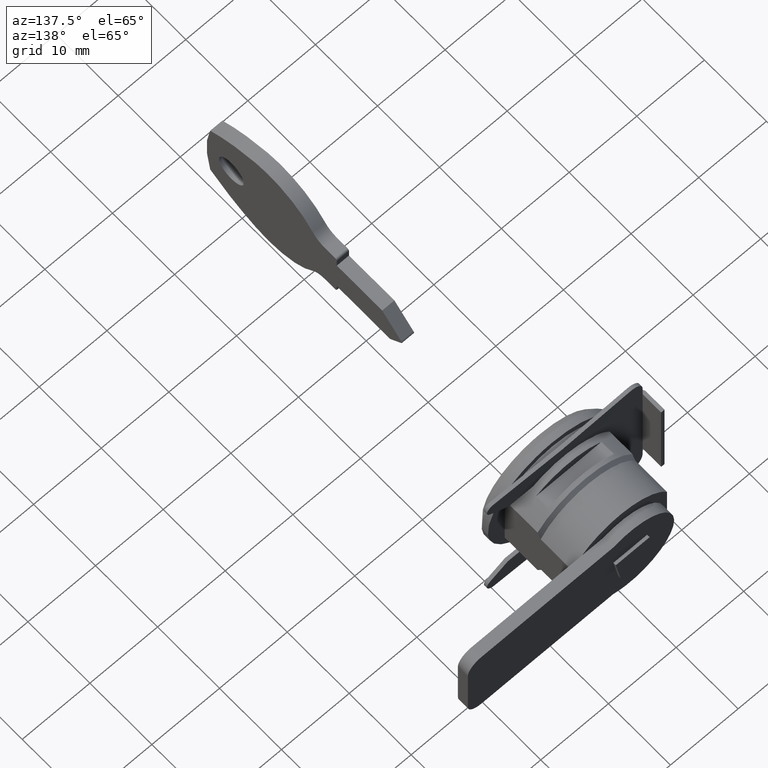
[diagram: clean part render]
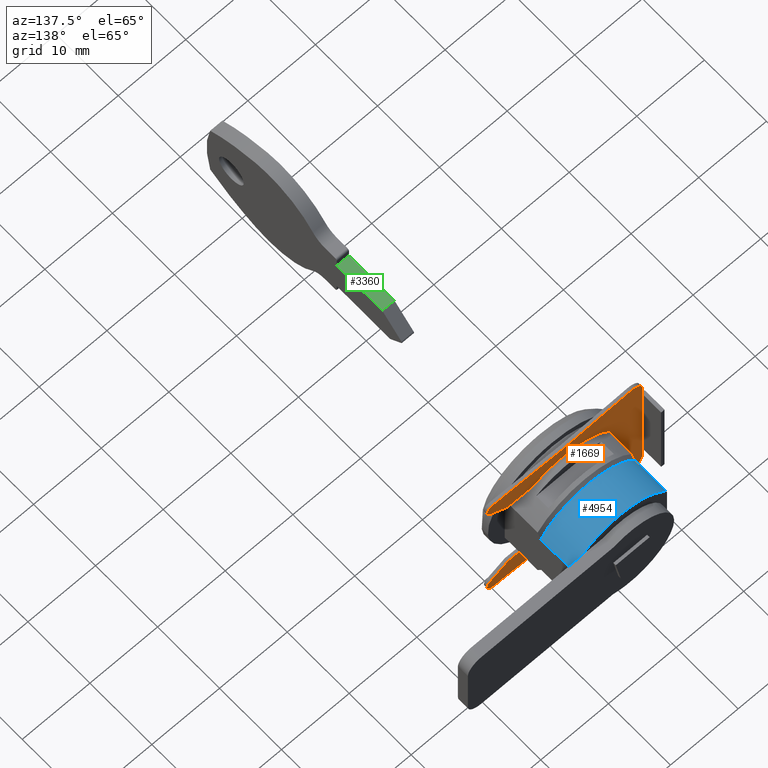
[diagram: same view with three faces highlighted in distinct colors, each labeled with its STEP entity id]
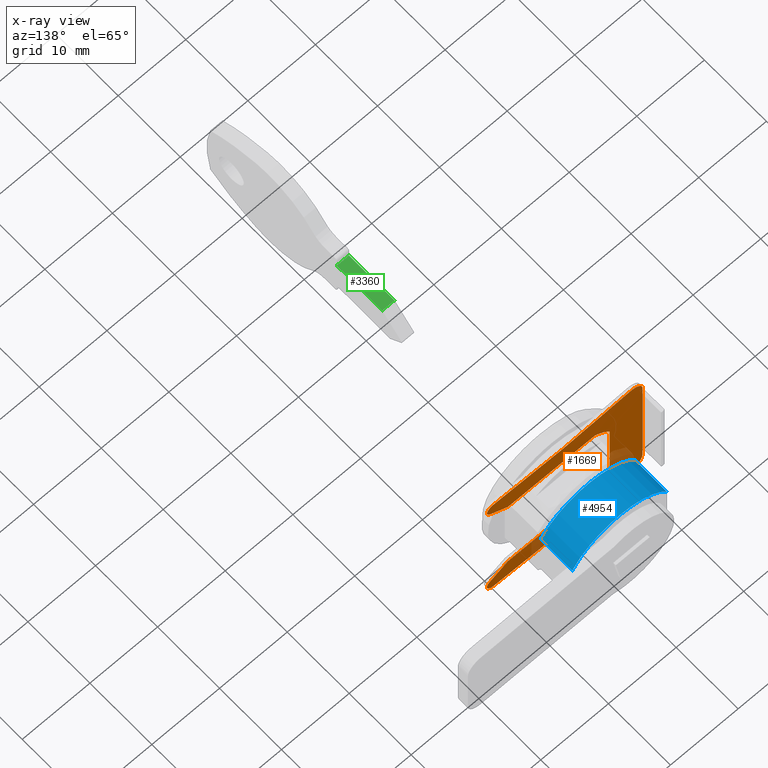
[diagram: x-ray of the same camera — body ghosted, the three highlighted faces saturated]
A machine part, auxiliary view with three faces highlighted in distinct colors.
The next image is the same camera in x-ray (body ghosted, the three faces saturated) — at least one of them is partly hidden behind the body in this view.
Their STEP definitions:

[orange] entity #1669 — the highlighted face is a freeform B-spline surface patch.
#607=CARTESIAN_POINT('',(10.0,1.533278711939535,10.500000000000000));
#608=VERTEX_POINT('',#607);
#643=CARTESIAN_POINT('',(11.0,1.500000000000525,9.500000000000000));
#644=VERTEX_POINT('',#643);
#658=CARTESIAN_POINT('',(10.0,1.533278711939535,10.500000000000000));
#659=CARTESIAN_POINT('',(10.107742023837600,1.529856346436006,10.500000000009940));
#660=CARTESIAN_POINT('',(10.212593911290000,1.526473100540747,10.483029653974940));
#661=CARTESIAN_POINT('',(10.340076613222710,1.522302234544356,10.440781118270230));
#662=CARTESIAN_POINT('',(10.365290613249790,1.521474326880014,10.431276298007999));
#663=CARTESIAN_POINT('',(10.414471154806870,1.519854065763447,10.410453920703040));
#664=CARTESIAN_POINT('',(10.438541051469450,1.519058333823623,10.399103410184670));
#665=CARTESIAN_POINT('',(10.509213983307539,1.516714544695119,10.362277839583919));
#666=CARTESIAN_POINT('',(10.554290178656380,1.515209569935021,10.334046646901070));
#667=CARTESIAN_POINT('',(10.618764973222770,1.513044938715569,10.286032425010440));
#668=CARTESIAN_POINT('',(10.639772728240700,1.512337516154372,10.269029212259390));
#669=CARTESIAN_POINT('',(10.679986887427420,1.510979768827128,10.233711620663509));
#670=CARTESIAN_POINT('',(10.699286978266180,1.510326308486251,10.215334268571150));
#671=CARTESIAN_POINT('',(10.754813971217921,1.508441814628658,10.158088969705300));
#672=CARTESIAN_POINT('',(10.788682646486830,1.507286181952489,10.117121183908999));
#673=CARTESIAN_POINT('',(10.834676683710819,1.505711073536586,10.051387304182841));
#674=CARTESIAN_POINT('',(10.849262188280370,1.505210502433258,10.028650447815769));
#675=CARTESIAN_POINT('',(10.876384374352281,1.504278106158945,9.982356506087637));
#676=CARTESIAN_POINT('',(10.888938778164979,1.503845685468256,9.958795858534341));
#677=CARTESIAN_POINT('',(10.923653937255709,1.502648297834013,9.886902465329662));
#678=CARTESIAN_POINT('',(10.942885072051039,1.501982615896451,9.837365842889787));
#679=CARTESIAN_POINT('',(10.973447903958821,1.500923111635423,9.735046402161482));
#680=CARTESIAN_POINT('',(10.984740857365271,1.500530627378306,9.681995021680764));
#681=CARTESIAN_POINT('',(10.997211155596890,1.500097062688471,9.586245177449420));
#682=CARTESIAN_POINT('',(11.000004229441370,1.499999865615068,9.543195670827750));
#683=CARTESIAN_POINT('',(11.0,1.500000000000525,9.500000000000000));
#684=B_SPLINE_CURVE_WITH_KNOTS('',3,(#658,#659,#660,#661,#662,#663,#664,#665,#666,#667,#668,#669,#670,#671,#672,#673,#674,#675,#676,#677,#678,#679,#680,#681,#682,#683),.UNSPECIFIED.,.F.,.U.,(4,2,2,2,2,2,2,2,2,2,2,2,4),(0.0,0.124999999999995,0.156249999999994,0.187499999999994,0.249999999999993,0.281249999999992,0.312499999999990,0.374999999999986,0.406249999999986,0.437499999999985,0.499999999999986,0.562499999999987,0.613240821378529),.UNSPECIFIED.);
#685=EDGE_CURVE('',#608,#644,#684,.T.);
#704=CARTESIAN_POINT('',(11.0,1.500000000000475,-9.500000000000000));
#705=VERTEX_POINT('',#704);
#748=CARTESIAN_POINT('',(10.0,1.533278711939590,-10.500000000000000));
#749=VERTEX_POINT('',#748);
#755=CARTESIAN_POINT('',(11.0,1.500000000000475,-9.500000000000000));
#756=CARTESIAN_POINT('',(10.999999272886100,1.500000025624124,-9.516227616813300));
#757=CARTESIAN_POINT('',(10.999605422694881,1.500013728389029,-9.532485281798905));
#758=CARTESIAN_POINT('',(10.997511789764451,1.500086564943741,-9.575457767810487));
#759=CARTESIAN_POINT('',(10.995137127707199,1.500169175551710,-9.602050089784225));
#760=CARTESIAN_POINT('',(10.984881979176050,1.500525727021712,-9.681229851560838));
#761=CARTESIAN_POINT('',(10.973889913653720,1.500907767569112,-9.733223821932057));
#762=CARTESIAN_POINT('',(10.943514492847180,1.501960823660550,-9.835611314319964));
#763=CARTESIAN_POINT('',(10.923956338604761,1.502637848560323,-9.886195127471360));
#764=CARTESIAN_POINT('',(10.877685734591770,1.504233846922271,-9.982192227708584));
#765=CARTESIAN_POINT('',(10.850879839257409,1.505156084588453,-10.028060252549951));
#766=CARTESIAN_POINT('',(10.789916185297340,1.507244035132504,-10.115529161427339));
#767=CARTESIAN_POINT('',(10.755431748885179,1.508420790598978,-10.157397030210110));
#768=CARTESIAN_POINT('',(10.681197392066460,1.510940297338669,-10.234042042688300));
#769=CARTESIAN_POINT('',(10.641310225517101,1.512287837044869,-10.269126776154859));
#770=CARTESIAN_POINT('',(10.577352029761100,1.514435394859961,-10.316929583101860));
#771=CARTESIAN_POINT('',(10.555341497541340,1.515172392483562,-10.332056032383720));
#772=CARTESIAN_POINT('',(10.509902329467639,1.516689037260168,-10.360651433827639));
#773=CARTESIAN_POINT('',(10.486508006232640,1.517467509909382,-10.374084887281180));
#774=CARTESIAN_POINT('',(10.415456743445750,1.519824001937095,-10.411181329552850));
#775=CARTESIAN_POINT('',(10.366538343211950,1.521436248108873,-10.431921302857370));
#776=CARTESIAN_POINT('',(10.290868383896800,1.523912297157789,-10.457132497506690));
#777=CARTESIAN_POINT('',(10.265261189862260,1.524747318998329,-10.464548431431631));
#778=CARTESIAN_POINT('',(10.213262401237291,1.526436708348581,-10.477361889809981));
#779=CARTESIAN_POINT('',(10.186799337675421,1.527293362837921,-10.482764869645480));
#780=CARTESIAN_POINT('',(10.107302946869600,1.529857112425849,-10.495675106514661));
#781=CARTESIAN_POINT('',(10.053870891761649,1.531567532813429,-10.500000000002411));
#782=CARTESIAN_POINT('',(10.0,1.533278711939590,-10.500000000000000));
#783=B_SPLINE_CURVE_WITH_KNOTS('',3,(#755,#756,#757,#758,#759,#760,#761,#762,#763,#764,#765,#766,#767,#768,#769,#770,#771,#772,#773,#774,#775,#776,#777,#778,#779,#780,#781,#782),.UNSPECIFIED.,.F.,.U.,(4,2,2,2,2,2,2,2,2,2,2,2,2,4),(0.387385123971727,0.406249999999989,0.437499999999990,0.499999999999990,0.562499999999990,0.624999999999991,0.687499999999991,0.749999999999991,0.781249999999993,0.812499999999995,0.874999999999998,0.906249999999999,0.937500000000000,1.0),.UNSPECIFIED.);
#784=EDGE_CURVE('',#705,#749,#783,.T.);
#816=CARTESIAN_POINT('',(-7.0,1.636119010082040,4.821825380496470));
#817=VERTEX_POINT('',#816);
#823=CARTESIAN_POINT('',(-4.821825380496490,1.671760568319135,7.0));
#824=VERTEX_POINT('',#823);
#825=CARTESIAN_POINT('',(-7.0,1.636119010082040,4.821825380496470));
#826=CARTESIAN_POINT('',(-6.703858317080147,1.641940441234167,5.251743848474170));
#827=CARTESIAN_POINT('',(-6.373437009846585,1.648041218533252,5.647378121186010));
#828=CARTESIAN_POINT('',(-5.647380739507115,1.660140159858111,6.373434689802404));
#829=CARTESIAN_POINT('',(-5.251745814043654,1.666142003933715,6.703856963132610));
#830=CARTESIAN_POINT('',(-4.821825380496501,1.671760568319145,7.0));
#831=B_SPLINE_CURVE_WITH_KNOTS('',3,(#825,#826,#827,#828,#829,#830),.UNSPECIFIED.,.F.,.U.,(4,2,4),(0.0,0.500000000000000,1.0),.UNSPECIFIED.);
#832=EDGE_CURVE('',#817,#824,#831,.T.);
#856=CARTESIAN_POINT('',(10.546678350318420,1.515461242351355,-8.662657309524271));
#857=VERTEX_POINT('',#856);
#897=CARTESIAN_POINT('',(10.546678350318420,1.515461242351355,-8.662657309524271));
#898=CARTESIAN_POINT('',(10.636905737676701,1.512445838912854,-8.721564193258582));
#899=CARTESIAN_POINT('',(10.715440984928851,1.509784841713954,-8.793108803764746));
#900=CARTESIAN_POINT('',(10.799109696210291,1.506928899803901,-8.898213733960560));
#901=CARTESIAN_POINT('',(10.815028104527210,1.506384263577738,-8.919962198130815));
#902=CARTESIAN_POINT('',(10.844829753358930,1.505362723724284,-8.964297108646781));
#903=CARTESIAN_POINT('',(10.858781074877260,1.504883496703545,-8.986967157281550));
#904=CARTESIAN_POINT('',(10.897830681920860,1.503540003458125,-9.056461731756203));
#905=CARTESIAN_POINT('',(10.920142729574939,1.502769340437090,-9.104761095345948));
#906=CARTESIAN_POINT('',(10.947880257913710,1.501809421432879,-9.180243550695309));
#907=CARTESIAN_POINT('',(10.956173502699190,1.501522027399987,-9.205973764806016));
#908=CARTESIAN_POINT('',(10.970533327021620,1.501023998526497,-9.257544822230328));
#909=CARTESIAN_POINT('',(10.976644268008590,1.500811829559563,-9.283491007338910));
#910=CARTESIAN_POINT('',(10.991833141566721,1.500284203204682,-9.361802071614720));
#911=CARTESIAN_POINT('',(10.997787078054310,1.500076990131048,-9.414636461202756));
#912=CARTESIAN_POINT('',(10.999831450936780,1.500005863465107,-9.478705517694243));
#913=CARTESIAN_POINT('',(11.000000446503289,1.499999984204304,-9.489346283234356));
#914=CARTESIAN_POINT('',(11.0,1.500000000000475,-9.500000000000000));
#915=B_SPLINE_CURVE_WITH_KNOTS('',3,(#897,#898,#899,#900,#901,#902,#903,#904,#905,#906,#907,#908,#909,#910,#911,#912,#913,#914),.UNSPECIFIED.,.F.,.U.,(4,2,2,2,2,2,2,2,4),(0.0,0.124999999999994,0.156249999999994,0.187499999999993,0.249999999999992,0.281249999999991,0.312499999999990,0.374999999999989,0.387385123971727),.UNSPECIFIED.);
#916=EDGE_CURVE('',#857,#705,#915,.T.);
#942=CARTESIAN_POINT('',(8.0,1.590752233616710,-7.0));
#943=VERTEX_POINT('',#942);
#944=CARTESIAN_POINT('',(10.546678350318420,1.515461242351355,-8.662657309524271));
#945=CARTESIAN_POINT('',(9.273484273399376,1.558011457501674,-7.831423181825927));
#946=CARTESIAN_POINT('',(8.0,1.590752233616710,-7.0));
#954=(BOUNDED_CURVE()B_SPLINE_CURVE(2,(#944,#945,#946),.UNSPECIFIED.,.F.,.U.)CURVE()GEOMETRIC_REPRESENTATION_ITEM()QUASI_UNIFORM_CURVE()RATIONAL_B_SPLINE_CURVE((1.0,0.999992581689930,1.0))REPRESENTATION_ITEM(''));
#955=EDGE_CURVE('',#857,#943,#954,.T.);
#986=CARTESIAN_POINT('',(-4.821825380496460,1.671760568319190,-7.0));
#987=VERTEX_POINT('',#986);
#988=CARTESIAN_POINT('',(8.0,1.590752233616710,-7.0));
#989=CARTESIAN_POINT('',(1.589872622823108,1.755554068791409,-7.0));
#990=CARTESIAN_POINT('',(-4.821825380496460,1.671760568319190,-7.0));
#998=(BOUNDED_CURVE()B_SPLINE_CURVE(2,(#988,#989,#990),.UNSPECIFIED.,.F.,.U.)CURVE()GEOMETRIC_REPRESENTATION_ITEM()QUASI_UNIFORM_CURVE()RATIONAL_B_SPLINE_CURVE((1.0,0.999812096954692,1.0))REPRESENTATION_ITEM(''));
#999=EDGE_CURVE('',#943,#987,#998,.T.);
#1035=CARTESIAN_POINT('',(-7.0,1.636119010081980,-4.821825380496480));
#1036=VERTEX_POINT('',#1035);
#1037=CARTESIAN_POINT('',(-4.821825380496460,1.671760568319190,-7.0));
#1038=CARTESIAN_POINT('',(-5.251745814043622,1.666142003933760,-6.703856963132610));
#1039=CARTESIAN_POINT('',(-5.647380739507105,1.660140159858129,-6.373434689802414));
#1040=CARTESIAN_POINT('',(-6.373437009846585,1.648041218533269,-5.647378121186008));
#1041=CARTESIAN_POINT('',(-6.703858317080142,1.641940441234157,-5.251743848474172));
#1042=CARTESIAN_POINT('',(-7.0,1.636119010081980,-4.821825380496480));
#1043=B_SPLINE_CURVE_WITH_KNOTS('',3,(#1037,#1038,#1039,#1040,#1041,#1042),.UNSPECIFIED.,.F.,.U.,(4,2,4),(0.0,0.500000000000000,1.0),.UNSPECIFIED.);
#1044=EDGE_CURVE('',#987,#1036,#1043,.T.);
#1065=CARTESIAN_POINT('',(-7.0,1.636119010081980,-4.821825380496480));
#1066=CARTESIAN_POINT('',(-7.0,1.636119010082040,4.821825380496470));
#1067=QUASI_UNIFORM_CURVE('',1,(#1065,#1066),.UNSPECIFIED.,.F.,.U.);
#1068=EDGE_CURVE('',#1036,#817,#1067,.T.);
#1095=CARTESIAN_POINT('',(8.0,1.590752233616710,7.0));
#1096=VERTEX_POINT('',#1095);
#1097=CARTESIAN_POINT('',(-4.821825380496490,1.671760568319135,7.0));
#1098=CARTESIAN_POINT('',(1.589872622822743,1.755554068791410,7.000000000000001));
#1099=CARTESIAN_POINT('',(8.0,1.590752233616710,7.0));
#1107=(BOUNDED_CURVE()B_SPLINE_CURVE(2,(#1097,#1098,#1099),.UNSPECIFIED.,.F.,.U.)CURVE()GEOMETRIC_REPRESENTATION_ITEM()QUASI_UNIFORM_CURVE()RATIONAL_B_SPLINE_CURVE((1.0,0.999812096954692,1.0))REPRESENTATION_ITEM(''));
#1108=EDGE_CURVE('',#824,#1096,#1107,.T.);
#1139=CARTESIAN_POINT('',(10.546678500000001,1.515461243579095,8.662657500000021));
#1140=VERTEX_POINT('',#1139);
#1141=CARTESIAN_POINT('',(8.0,1.590752233616710,7.0));
#1142=CARTESIAN_POINT('',(9.273484255010057,1.558011457974518,7.831423419848516));
#1143=CARTESIAN_POINT('',(10.546678500000001,1.515461243579095,8.662657500000021));
#1151=(BOUNDED_CURVE()B_SPLINE_CURVE(2,(#1141,#1142,#1143),.UNSPECIFIED.,.F.,.U.)CURVE()GEOMETRIC_REPRESENTATION_ITEM()QUASI_UNIFORM_CURVE()RATIONAL_B_SPLINE_CURVE((1.0,0.999992581692577,1.0))REPRESENTATION_ITEM(''));
#1152=EDGE_CURVE('',#1096,#1140,#1151,.T.);
#1209=CARTESIAN_POINT('',(11.0,1.500000000000525,9.500000000000000));
#1210=CARTESIAN_POINT('',(10.999999046436610,1.500000030299507,9.489989409615992));
#1211=CARTESIAN_POINT('',(10.999847855323280,1.500005288076020,9.479970969050021));
#1212=CARTESIAN_POINT('',(10.997944121990299,1.500071522652641,9.416654961173048));
#1213=CARTESIAN_POINT('',(10.991969086850000,1.500279473192698,9.362732314685680));
#1214=CARTESIAN_POINT('',(10.971723969682170,1.500982751651078,9.257929637980871));
#1215=CARTESIAN_POINT('',(10.957509470390960,1.501476146214649,9.206728881218892));
#1216=CARTESIAN_POINT('',(10.930093160528070,1.502424999423035,9.131715875416379));
#1217=CARTESIAN_POINT('',(10.919933861923299,1.502776229511494,9.107010960656972));
#1218=CARTESIAN_POINT('',(10.897521733473130,1.503549821664563,9.058215362229783));
#1219=CARTESIAN_POINT('',(10.885273543002681,1.503972014189788,9.034163791805764));
#1220=CARTESIAN_POINT('',(10.846051278291741,1.505321496452128,8.964226354146730));
#1221=CARTESIAN_POINT('',(10.816421931999921,1.506337867664201,8.920101180215857));
#1222=CARTESIAN_POINT('',(10.766835297301030,1.508030603680036,8.857606162992827));
#1223=CARTESIAN_POINT('',(10.749445239166810,1.508623010160325,8.837392875630458));
#1224=CARTESIAN_POINT('',(10.712905865392610,1.509864576568163,8.798229547010957));
#1225=CARTESIAN_POINT('',(10.693697926163381,1.510515709504518,8.779233977381157));
#1226=CARTESIAN_POINT('',(10.634176575283620,1.512527843847698,8.724949044503646));
#1227=CARTESIAN_POINT('',(10.591792276257859,1.513953538792776,8.692111133668048));
#1228=CARTESIAN_POINT('',(10.546678500000001,1.515461243579095,8.662657500000021));
#1229=B_SPLINE_CURVE_WITH_KNOTS('',3,(#1209,#1210,#1211,#1212,#1213,#1214,#1215,#1216,#1217,#1218,#1219,#1220,#1221,#1222,#1223,#1224,#1225,#1226,#1227,#1228),.UNSPECIFIED.,.F.,.U.,(4,2,2,2,2,2,2,2,2,4),(0.613240821378529,0.624999999999988,0.687499999999989,0.749999999999990,0.781249999999991,0.812499999999992,0.874999999999994,0.906249999999996,0.937499999999997,1.0),.UNSPECIFIED.);
#1230=EDGE_CURVE('',#644,#1140,#1229,.T.);
#1278=CARTESIAN_POINT('',(-10.0,1.563529179400780,10.500000000000000));
#1279=VERTEX_POINT('',#1278);
#1285=CARTESIAN_POINT('',(-12.000000000000220,1.499999999999148,8.500000000000000));
#1286=VERTEX_POINT('',#1285);
#1287=CARTESIAN_POINT('',(-10.0,1.563529179400780,10.500000000000000));
#1288=CARTESIAN_POINT('',(-10.132032080968809,1.559735022439801,10.500000000000000));
#1289=CARTESIAN_POINT('',(-10.261858063868489,1.555925155518496,10.487053978581001));
#1290=CARTESIAN_POINT('',(-10.453423635252740,1.550194266102001,10.449011363960221));
#1291=CARTESIAN_POINT('',(-10.516746000629761,1.548281390425564,10.433203508638890));
#1292=CARTESIAN_POINT('',(-10.642300949712171,1.544453067158152,10.395191738315511));
#1293=CARTESIAN_POINT('',(-10.704709407546330,1.542531976077038,10.372878813828480));
#1294=CARTESIAN_POINT('',(-10.886260629742390,1.536894171911384,10.297693994442920));
#1295=CARTESIAN_POINT('',(-11.001076101366190,1.533262404002086,10.236347831383361));
#1296=CARTESIAN_POINT('',(-11.164057008592771,1.528031248507676,10.127647249503131));
#1297=CARTESIAN_POINT('',(-11.216999115663141,1.526318488826174,10.088475823814900));
#1298=CARTESIAN_POINT('',(-11.318920484773720,1.522998306283291,10.004922272150139));
#1299=CARTESIAN_POINT('',(-11.367424992363880,1.521406467988817,9.960958588686848));
#1300=CARTESIAN_POINT('',(-11.505801012452141,1.516837727901869,9.822712267008594));
#1301=CARTESIAN_POINT('',(-11.588602493291400,1.514065578997717,9.722134436058438));
#1302=CARTESIAN_POINT('',(-11.698297458874160,1.510361342088181,9.558349354681345));
#1303=CARTESIAN_POINT('',(-11.732374481099789,1.509204498359875,9.501579095897107));
#1304=CARTESIAN_POINT('',(-11.794139861679520,1.507099779479915,9.386196470787620));
#1305=CARTESIAN_POINT('',(-11.849948032870540,1.505189479718641,9.268365614866049));
#1306=CARTESIAN_POINT('',(-11.894024800800659,1.503670750051859,9.145713388675448));
#1307=CARTESIAN_POINT('',(-11.932157451384990,1.502354034373666,9.020618199278697));
#1308=CARTESIAN_POINT('',(-11.948302909354160,1.501794908426830,8.956571006427689));
#1309=CARTESIAN_POINT('',(-11.987041476081160,1.500451623464782,8.762738300151186));
#1310=CARTESIAN_POINT('',(-12.0,1.499999999999130,8.632088317176617));
#1311=CARTESIAN_POINT('',(-12.000000000000220,1.499999999999148,8.500000000000000));
#1312=B_SPLINE_CURVE_WITH_KNOTS('',3,(#1287,#1288,#1289,#1290,#1291,#1292,#1293,#1294,#1295,#1296,#1297,#1298,#1299,#1300,#1301,#1302,#1303,#1304,#1305,#1306,#1307,#1308,#1309,#1310,#1311),.UNSPECIFIED.,.F.,.U.,(4,2,2,2,2,2,2,2,2,1,2,2,4),(0.0,0.125000000000002,0.187500000000003,0.250000000000003,0.375000000000003,0.437500000000003,0.500000000000002,0.625000000000000,0.687500000000000,0.750000000000000,0.812500000000000,0.875000000000000,1.0),.UNSPECIFIED.);
#1313=EDGE_CURVE('',#1279,#1286,#1312,.T.);
#1338=CARTESIAN_POINT('',(-12.0,1.499999999999170,-8.500000000000000));
#1339=VERTEX_POINT('',#1338);
#1345=CARTESIAN_POINT('',(-10.0,1.563529179400780,-10.500000000000000));
#1346=VERTEX_POINT('',#1345);
#1347=CARTESIAN_POINT('',(-12.0,1.499999999999170,-8.500000000000000));
#1348=CARTESIAN_POINT('',(-12.0,1.499999999999170,-8.632087170980094));
#1349=CARTESIAN_POINT('',(-11.987043270655070,1.500451526729585,-8.761966124212783));
#1350=CARTESIAN_POINT('',(-11.948969370015670,1.501771815274379,-8.953607977402712));
#1351=CARTESIAN_POINT('',(-11.933148512647749,1.502319751847210,-9.016955231331522));
#1352=CARTESIAN_POINT('',(-11.895105305776060,1.503633498404161,-9.142558762427720));
#1353=CARTESIAN_POINT('',(-11.872775754534739,1.504402967846305,-9.204984918201038));
#1354=CARTESIAN_POINT('',(-11.797541919522940,1.506985880571433,-9.386574359100303));
#1355=CARTESIAN_POINT('',(-11.736158610915901,1.509082400035334,-9.501408493200353));
#1356=CARTESIAN_POINT('',(-11.627397059826610,1.512755748890424,-9.664407674655026));
#1357=CARTESIAN_POINT('',(-11.588196485694001,1.514073744312835,-9.717363463729127));
#1358=CARTESIAN_POINT('',(-11.504623660370919,1.516866684308605,-9.819260975184722));
#1359=CARTESIAN_POINT('',(-11.460650957050481,1.518328297902295,-9.867753468299986));
#1360=CARTESIAN_POINT('',(-11.322379215039870,1.522894018032528,-10.006093053282880));
#1361=CARTESIAN_POINT('',(-11.221786609314821,1.526177360611689,-10.088869727496251));
#1362=CARTESIAN_POINT('',(-11.057982138610800,1.531436365344091,-10.198526177836030));
#1363=CARTESIAN_POINT('',(-11.001229001162580,1.533244707715723,-10.232575913941419));
#1364=CARTESIAN_POINT('',(-10.885878034846380,1.536889049881592,-10.294296217940531));
#1365=CARTESIAN_POINT('',(-10.768078649809850,1.540580527245291,-10.350065032543890));
#1366=CARTESIAN_POINT('',(-10.645456563417110,1.544356187382292,-10.394111726897631));
#1367=CARTESIAN_POINT('',(-10.520390447868550,1.548170893060944,-10.432218204809301));
#1368=CARTESIAN_POINT('',(-10.456351955634940,1.550106223619174,-10.448353044887369));
#1369=CARTESIAN_POINT('',(-10.262618646379840,1.555903257060274,-10.487052648096800));
#1370=CARTESIAN_POINT('',(-10.132030823472780,1.559735058575993,-10.500000000000000));
#1371=CARTESIAN_POINT('',(-10.0,1.563529179400775,-10.500000000000000));
#1372=B_SPLINE_CURVE_WITH_KNOTS('',3,(#1347,#1348,#1349,#1350,#1351,#1352,#1353,#1354,#1355,#1356,#1357,#1358,#1359,#1360,#1361,#1362,#1363,#1364,#1365,#1366,#1367,#1368,#1369,#1370,#1371),.UNSPECIFIED.,.F.,.U.,(4,2,2,2,2,2,2,2,2,1,2,2,4),(0.0,0.124999999999999,0.187499999999998,0.249999999999998,0.374999999999996,0.437499999999996,0.499999999999995,0.624999999999997,0.687499999999997,0.749999999999998,0.812499999999998,0.874999999999999,1.0),.UNSPECIFIED.);
#1373=EDGE_CURVE('',#1339,#1346,#1372,.T.);
#1432=CARTESIAN_POINT('',(-12.0,1.499999999999170,-7.0));
#1433=VERTEX_POINT('',#1432);
#1454=CARTESIAN_POINT('',(-12.0,1.499999999999170,-8.500000000000000));
#1455=CARTESIAN_POINT('',(-12.0,1.499999999999170,-7.0));
#1456=QUASI_UNIFORM_CURVE('',1,(#1454,#1455),.UNSPECIFIED.,.F.,.U.);
#1457=EDGE_CURVE('',#1339,#1433,#1456,.T.);
#1469=CARTESIAN_POINT('',(-12.0,1.499999999999170,7.0));
#1470=VERTEX_POINT('',#1469);
#1505=CARTESIAN_POINT('',(-12.000000000000220,1.499999999999148,8.500000000000000));
#1506=CARTESIAN_POINT('',(-12.0,1.499999999999170,7.0));
#1507=QUASI_UNIFORM_CURVE('',1,(#1505,#1506),.UNSPECIFIED.,.F.,.U.);
#1508=EDGE_CURVE('',#1286,#1470,#1507,.T.);
#1521=CARTESIAN_POINT('',(-10.0,1.563529179400780,10.500000000000000));
#1522=CARTESIAN_POINT('',(0.000457545390425,1.850908620293967,10.500000000000004));
#1523=CARTESIAN_POINT('',(10.0,1.533278711939535,10.500000000000000));
#1531=(BOUNDED_CURVE()B_SPLINE_CURVE(2,(#1521,#1522,#1523),.UNSPECIFIED.,.F.,.U.)CURVE()GEOMETRIC_REPRESENTATION_ITEM()QUASI_UNIFORM_CURVE()RATIONAL_B_SPLINE_CURVE((1.0,0.999542768391556,1.0))REPRESENTATION_ITEM(''));
#1532=EDGE_CURVE('',#1279,#608,#1531,.T.);
#1570=CARTESIAN_POINT('',(-10.0,1.563529179400780,-10.500000000000000));
#1571=CARTESIAN_POINT('',(0.000457545390425,1.850908620293967,-10.500000000000004));
#1572=CARTESIAN_POINT('',(10.0,1.533278711939590,-10.500000000000000));
#1580=(BOUNDED_CURVE()B_SPLINE_CURVE(2,(#1570,#1571,#1572),.UNSPECIFIED.,.F.,.U.)CURVE()GEOMETRIC_REPRESENTATION_ITEM()QUASI_UNIFORM_CURVE()RATIONAL_B_SPLINE_CURVE((1.0,0.999542768391556,1.0))REPRESENTATION_ITEM(''));
#1581=EDGE_CURVE('',#1346,#749,#1580,.T.);
#1614=CARTESIAN_POINT('',(-12.0,1.499999999999170,7.0));
#1615=CARTESIAN_POINT('',(-12.0,1.499999999999170,-7.0));
#1616=QUASI_UNIFORM_CURVE('',1,(#1614,#1615),.UNSPECIFIED.,.F.,.U.);
#1617=EDGE_CURVE('',#1470,#1433,#1616,.T.);
#1635=CARTESIAN_POINT('',(12.147982139343194,1.458061854617551,11.025000000000006));
#1636=CARTESIAN_POINT('',(12.147982139343194,1.458061854617551,-11.038124999999997));
#1637=CARTESIAN_POINT('',(-0.500066522386644,1.942117807963761,11.025000000000004));
#1638=CARTESIAN_POINT('',(-0.500066522386644,1.942117807963761,-11.038124999999996));
#1639=CARTESIAN_POINT('',(-13.148114989530773,1.458056770253653,11.024999999999999));
#1640=CARTESIAN_POINT('',(-13.148114989530773,1.458056770253653,-11.038124999999997));
#1648=(BOUNDED_SURFACE()B_SPLINE_SURFACE(1,2,((#1635,#1637,#1639),(#1636,#1638,#1640)),.UNSPECIFIED.,.F.,.F.,.U.)B_SPLINE_SURFACE_WITH_KNOTS((2,2),(3,3),(0.0,22.063124999999999),(12.292701749992370,37.598117799568179),.UNSPECIFIED.)GEOMETRIC_REPRESENTATION_ITEM()RATIONAL_B_SPLINE_SURFACE(((0.998886729210547,0.998095804727372,0.998766259753230),(0.998886729210547,0.998095804727372,0.998766259753230)))REPRESENTATION_ITEM('')SURFACE());
#1649=ORIENTED_EDGE('',*,*,#685,.T.);
#1650=ORIENTED_EDGE('',*,*,#1230,.T.);
#1651=ORIENTED_EDGE('',*,*,#1152,.F.);
#1652=ORIENTED_EDGE('',*,*,#1108,.F.);
#1653=ORIENTED_EDGE('',*,*,#832,.F.);
#1654=ORIENTED_EDGE('',*,*,#1068,.F.);
#1655=ORIENTED_EDGE('',*,*,#1044,.F.);
#1656=ORIENTED_EDGE('',*,*,#999,.F.);
#1657=ORIENTED_EDGE('',*,*,#955,.F.);
#1658=ORIENTED_EDGE('',*,*,#916,.T.);
#1659=ORIENTED_EDGE('',*,*,#784,.T.);
#1660=ORIENTED_EDGE('',*,*,#1581,.F.);
#1661=ORIENTED_EDGE('',*,*,#1373,.F.);
#1662=ORIENTED_EDGE('',*,*,#1457,.T.);
#1663=ORIENTED_EDGE('',*,*,#1617,.F.);
#1664=ORIENTED_EDGE('',*,*,#1508,.F.);
#1665=ORIENTED_EDGE('',*,*,#1313,.F.);
#1666=ORIENTED_EDGE('',*,*,#1532,.T.);
#1667=EDGE_LOOP('',(#1649,#1650,#1651,#1652,#1653,#1654,#1655,#1656,#1657,#1658,#1659,#1660,#1661,#1662,#1663,#1664,#1665,#1666));
#1668=FACE_OUTER_BOUND('',#1667,.T.);
#1669=ADVANCED_FACE('',(#1668),#1648,.T.);

[blue] entity #4954 — the highlighted face is a freeform B-spline surface patch.
#4732=CARTESIAN_POINT('',(10.900000000000000,-7.0,3.872983346207450));
#4733=VERTEX_POINT('',#4732);
#4739=CARTESIAN_POINT('',(5.799999999999770,-7.0,3.872983346207300));
#4740=VERTEX_POINT('',#4739);
#4741=CARTESIAN_POINT('',(10.900000000000000,-7.0,3.872983346207450));
#4742=CARTESIAN_POINT('',(5.799999999999770,-7.0,3.872983346207300));
#4743=QUASI_UNIFORM_CURVE('',1,(#4741,#4742),.UNSPECIFIED.,.F.,.U.);
#4744=EDGE_CURVE('',#4733,#4740,#4743,.T.);
#4784=CARTESIAN_POINT('',(5.799999999999770,7.0,3.872983346207300));
#4785=VERTEX_POINT('',#4784);
#4793=CARTESIAN_POINT('',(10.900000000000000,7.0,3.872983346207415));
#4794=VERTEX_POINT('',#4793);
#4795=CARTESIAN_POINT('',(5.799999999999770,7.0,3.872983346207300));
#4796=CARTESIAN_POINT('',(10.900000000000000,7.0,3.872983346207415));
#4797=QUASI_UNIFORM_CURVE('',1,(#4795,#4796),.UNSPECIFIED.,.F.,.U.);
#4798=EDGE_CURVE('',#4785,#4794,#4797,.T.);
#4896=CARTESIAN_POINT('',(10.900000000000000,-6.999999999999987,3.872983346207443));
#4897=CARTESIAN_POINT('',(10.900000000000002,-4.716590461477218,8.0));
#4898=CARTESIAN_POINT('',(10.900000000000000,0.0,8.0));
#4899=CARTESIAN_POINT('',(10.900000000000002,4.716590461477239,8.0));
#4900=CARTESIAN_POINT('',(10.900000000000000,7.000000000000001,3.872983346207415));
#4908=(BOUNDED_CURVE()B_SPLINE_CURVE(2,(#4896,#4897,#4898,#4899,#4900),.UNSPECIFIED.,.F.,.U.)B_SPLINE_CURVE_WITH_KNOTS((3,2,3),(0.0,0.500000000000000,1.0),.UNSPECIFIED.)CURVE()GEOMETRIC_REPRESENTATION_ITEM()RATIONAL_B_SPLINE_CURVE((1.0,0.861429892178095,1.0,0.861429892178095,1.0))REPRESENTATION_ITEM(''));
#4909=EDGE_CURVE('',#4733,#4794,#4908,.T.);
#4920=CARTESIAN_POINT('',(11.027500000000011,7.156670662180244,3.575201397556304));
#4921=CARTESIAN_POINT('',(5.669312499999763,7.156670662180244,3.575201397556304));
#4922=CARTESIAN_POINT('',(11.027500000000009,-0.338894943317527,18.579473465132427));
#4923=CARTESIAN_POINT('',(5.669312499999763,-0.338894943317527,18.579473465132427));
#4924=CARTESIAN_POINT('',(11.027500000000011,-7.282292107244372,3.311830560998899));
#4925=CARTESIAN_POINT('',(5.669312499999763,-7.282292107244372,3.311830560998899));
#4933=(BOUNDED_SURFACE()B_SPLINE_SURFACE(1,2,((#4920,#4922,#4924),(#4921,#4923,#4925)),.UNSPECIFIED.,.F.,.F.,.U.)B_SPLINE_SURFACE_WITH_KNOTS((2,2),(3,3),(0.0,5.358187500000246),(0.0,20.190496364297800),.UNSPECIFIED.)GEOMETRIC_REPRESENTATION_ITEM()RATIONAL_B_SPLINE_SURFACE(((1.0,0.430511096808295,1.0),(1.0,0.430511096808295,1.0)))REPRESENTATION_ITEM('')SURFACE());
#4934=ORIENTED_EDGE('',*,*,#4744,.F.);
#4935=ORIENTED_EDGE('',*,*,#4909,.T.);
#4936=ORIENTED_EDGE('',*,*,#4798,.F.);
#4937=CARTESIAN_POINT('',(5.799999999999770,-7.0,3.872983346207300));
#4938=CARTESIAN_POINT('',(5.799999999999770,-4.716590461477243,7.999999999999889));
#4939=CARTESIAN_POINT('',(5.799999999999770,0.0,7.999999999999889));
#4940=CARTESIAN_POINT('',(5.799999999999770,4.716590461477240,7.999999999999889));
#4941=CARTESIAN_POINT('',(5.799999999999770,7.0,3.872983346207300));
#4949=(BOUNDED_CURVE()B_SPLINE_CURVE(2,(#4937,#4938,#4939,#4940,#4941),.UNSPECIFIED.,.F.,.U.)B_SPLINE_CURVE_WITH_KNOTS((3,2,3),(0.0,0.500000000000000,1.0),.UNSPECIFIED.)CURVE()GEOMETRIC_REPRESENTATION_ITEM()RATIONAL_B_SPLINE_CURVE((1.0,0.861429892178091,1.0,0.861429892178091,1.0))REPRESENTATION_ITEM(''));
#4950=EDGE_CURVE('',#4740,#4785,#4949,.T.);
#4951=ORIENTED_EDGE('',*,*,#4950,.F.);
#4952=EDGE_LOOP('',(#4934,#4935,#4936,#4951));
#4953=FACE_OUTER_BOUND('',#4952,.T.);
#4954=ADVANCED_FACE('',(#4953),#4933,.T.);

[green] entity #3360 — the highlighted face is a freeform B-spline surface patch.
#2878=CARTESIAN_POINT('',(-33.747259605162448,0.900000000000012,3.100000000000090));
#2879=VERTEX_POINT('',#2878);
#2885=CARTESIAN_POINT('',(-26.422995605162448,0.900000000000012,3.100000000000090));
#2886=VERTEX_POINT('',#2885);
#2887=CARTESIAN_POINT('',(-26.422995605162448,0.900000000000012,3.100000000000090));
#2888=CARTESIAN_POINT('',(-33.747259605162448,0.900000000000012,3.100000000000090));
#2889=QUASI_UNIFORM_CURVE('',1,(#2887,#2888),.UNSPECIFIED.,.F.,.U.);
#2890=EDGE_CURVE('',#2886,#2879,#2889,.T.);
#3194=CARTESIAN_POINT('',(-26.422995605162448,-0.900000000000012,3.100000000000090));
#3195=VERTEX_POINT('',#3194);
#3201=CARTESIAN_POINT('',(-33.747259605162448,-0.900000000000012,3.100000000000090));
#3202=VERTEX_POINT('',#3201);
#3203=CARTESIAN_POINT('',(-26.422995605162448,-0.900000000000012,3.100000000000090));
#3204=CARTESIAN_POINT('',(-33.747259605162448,-0.900000000000012,3.100000000000090));
#3205=QUASI_UNIFORM_CURVE('',1,(#3203,#3204),.UNSPECIFIED.,.F.,.U.);
#3206=EDGE_CURVE('',#3195,#3202,#3205,.T.);
#3337=CARTESIAN_POINT('',(-33.747259605162448,-0.900000000000012,3.100000000000090));
#3338=CARTESIAN_POINT('',(-33.747259605162448,0.900000000000012,3.100000000000090));
#3339=QUASI_UNIFORM_CURVE('',1,(#3337,#3338),.UNSPECIFIED.,.F.,.U.);
#3340=EDGE_CURVE('',#3202,#2879,#3339,.T.);
#3345=CARTESIAN_POINT('',(-26.057149542792761,-0.989909973183287,3.100000000000090));
#3346=CARTESIAN_POINT('',(-34.113107828504909,-0.989909973183287,3.100000000000090));
#3347=CARTESIAN_POINT('',(-26.057149542792761,0.989909908810271,3.100000000000090));
#3348=CARTESIAN_POINT('',(-34.113107828504909,0.989909908810271,3.100000000000090));
#3349=B_SPLINE_SURFACE_WITH_KNOTS('',1,1,((#3345,#3347),(#3346,#3348)),.UNSPECIFIED.,.F.,.F.,.U.,(2,2),(2,2),(0.0,8.055958285712148),(0.0,1.979819881993559),.UNSPECIFIED.);
#3350=ORIENTED_EDGE('',*,*,#2890,.T.);
#3351=ORIENTED_EDGE('',*,*,#3340,.F.);
#3352=ORIENTED_EDGE('',*,*,#3206,.F.);
#3353=CARTESIAN_POINT('',(-26.422995605162448,-0.900000000000012,3.100000000000090));
#3354=CARTESIAN_POINT('',(-26.422995605162448,0.900000000000012,3.100000000000090));
#3355=QUASI_UNIFORM_CURVE('',1,(#3353,#3354),.UNSPECIFIED.,.F.,.U.);
#3356=EDGE_CURVE('',#3195,#2886,#3355,.T.);
#3357=ORIENTED_EDGE('',*,*,#3356,.T.);
#3358=EDGE_LOOP('',(#3350,#3351,#3352,#3357));
#3359=FACE_OUTER_BOUND('',#3358,.T.);
#3360=ADVANCED_FACE('',(#3359),#3349,.F.);